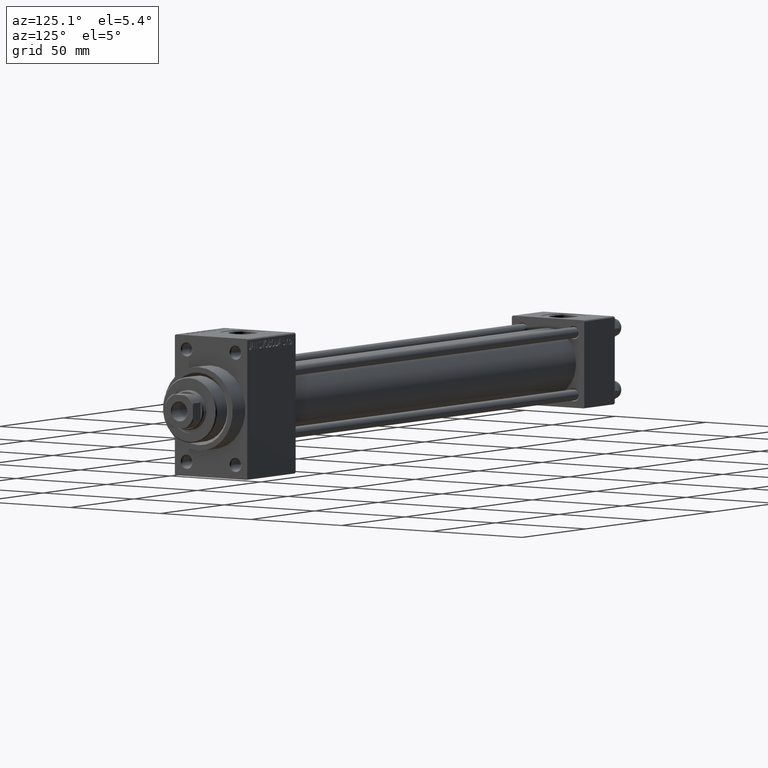
[diagram: clean part render]
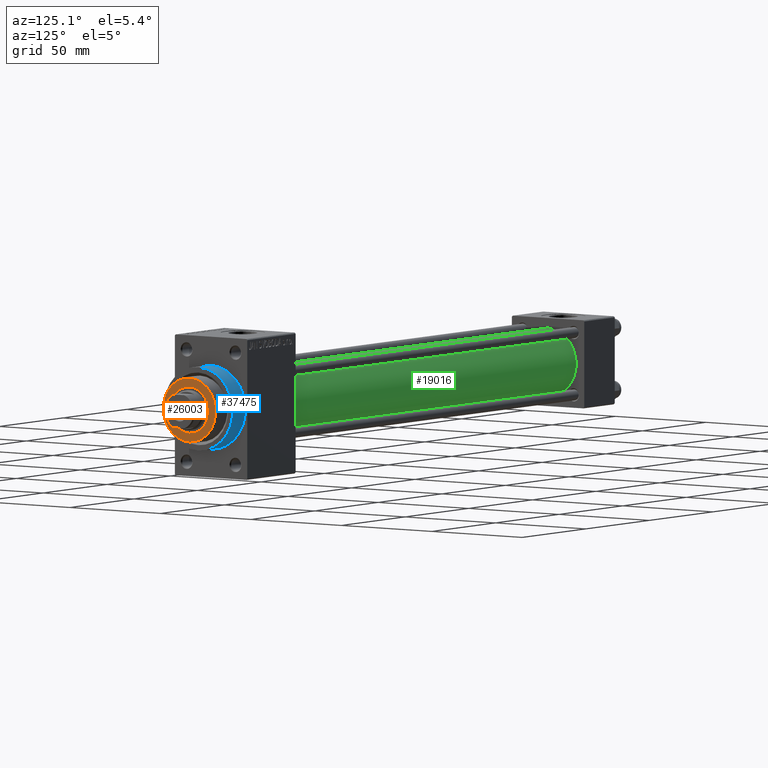
[diagram: same view with three faces highlighted in distinct colors, each labeled with its STEP entity id]
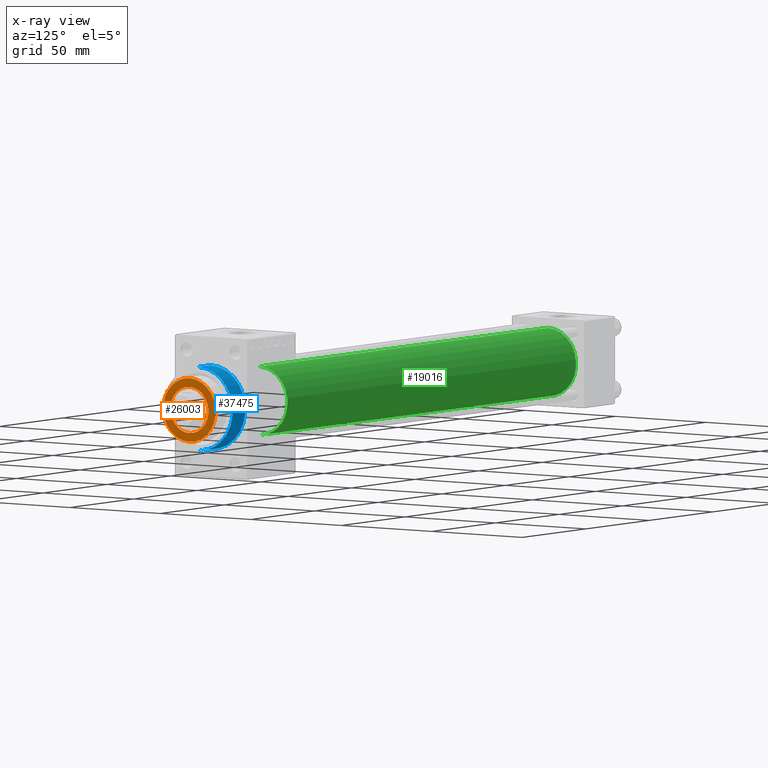
[diagram: x-ray of the same camera — body ghosted, the three highlighted faces saturated]
A machine part, auxiliary view with three faces highlighted in distinct colors.
The next image is the same camera in x-ray (body ghosted, the three faces saturated) — at least one of them is partly hidden behind the body in this view.
Their STEP definitions:

[orange] entity #26003 — the highlighted planar face has unit normal (1, -0, -0).
#2009 = EDGE_CURVE ( 'NONE', #25705, #29684, #4596, .T. ) ;
#2269 = AXIS2_PLACEMENT_3D ( 'NONE', #35678, #9964, #39954 ) ;
#3638 = CARTESIAN_POINT ( 'NONE',  ( 10.50000000000000000, 0.000000000000000000, 50.25999999999999801 ) ) ;
#4596 = CIRCLE ( 'NONE', #31203, 14.49999999999999112 ) ;
#4811 = ORIENTED_EDGE ( 'NONE', *, *, #12900, .T. ) ;
#5240 = FACE_OUTER_BOUND ( 'NONE', #44847, .T. ) ;
#5630 = CARTESIAN_POINT ( 'NONE',  ( 14.49999999999999112, 1.806354028742345013E-15, 50.25999999999999801 ) ) ;
#6304 = DIRECTION ( 'NONE',  ( 0.000000000000000000, 0.000000000000000000, 1.000000000000000000 ) ) ;
#9405 = CARTESIAN_POINT ( 'NONE',  ( 0.000000000000000000, 0.000000000000000000, 50.25999999999999801 ) ) ;
#9964 = DIRECTION ( 'NONE',  ( 0.000000000000000000, 0.000000000000000000, 1.000000000000000000 ) ) ;
#10255 = EDGE_LOOP ( 'NONE', ( #18934, #20164 ) ) ;
#12628 = VERTEX_POINT ( 'NONE', #3638 ) ;
#12900 = EDGE_CURVE ( 'NONE', #29684, #25705, #39047, .T. ) ;
#14142 = DIRECTION ( 'NONE',  ( 1.000000000000000000, 0.000000000000000000, 0.000000000000000000 ) ) ;
#14538 = DIRECTION ( 'NONE',  ( 0.000000000000000000, 0.000000000000000000, 1.000000000000000000 ) ) ;
#16187 = CARTESIAN_POINT ( 'NONE',  ( 0.000000000000000000, 0.000000000000000000, 50.25999999999999801 ) ) ;
#16743 = VERTEX_POINT ( 'NONE', #30263 ) ;
#18934 = ORIENTED_EDGE ( 'NONE', *, *, #33190, .F. ) ;
#19038 = CIRCLE ( 'NONE', #2269, 10.50000000000000000 ) ;
#19764 = PLANE ( 'NONE',  #28655 ) ;
#20164 = ORIENTED_EDGE ( 'NONE', *, *, #21427, .F. ) ;
#21004 = CARTESIAN_POINT ( 'NONE',  ( -14.49999999999999112, 0.000000000000000000, 50.25999999999999801 ) ) ;
#21427 = EDGE_CURVE ( 'NONE', #16743, #12628, #37655, .T. ) ;
#25705 = VERTEX_POINT ( 'NONE', #21004 ) ;
#26003 = ADVANCED_FACE ( 'NONE', ( #37852, #5240 ), #19764, .T. ) ;
#27370 = DIRECTION ( 'NONE',  ( 1.000000000000000000, 0.000000000000000000, -0.000000000000000000 ) ) ;
#27873 = AXIS2_PLACEMENT_3D ( 'NONE', #9405, #6304, #14142 ) ;
#28655 = AXIS2_PLACEMENT_3D ( 'NONE', #16187, #34760, #27370 ) ;
#28732 = DIRECTION ( 'NONE',  ( 0.000000000000000000, 0.000000000000000000, 1.000000000000000000 ) ) ;
#29684 = VERTEX_POINT ( 'NONE', #5630 ) ;
#29942 = DIRECTION ( 'NONE',  ( 1.000000000000000000, 0.000000000000000000, 0.000000000000000000 ) ) ;
#30263 = CARTESIAN_POINT ( 'NONE',  ( -10.50000000000000000, 1.285879139104720831E-15, 50.25999999999999801 ) ) ;
#31203 = AXIS2_PLACEMENT_3D ( 'NONE', #43501, #28732, #40392 ) ;
#33190 = EDGE_CURVE ( 'NONE', #12628, #16743, #19038, .T. ) ;
#34760 = DIRECTION ( 'NONE',  ( 0.000000000000000000, 0.000000000000000000, 1.000000000000000000 ) ) ;
#35678 = CARTESIAN_POINT ( 'NONE',  ( 0.000000000000000000, 0.000000000000000000, 50.25999999999999801 ) ) ;
#36360 = ORIENTED_EDGE ( 'NONE', *, *, #2009, .T. ) ;
#37655 = CIRCLE ( 'NONE', #27873, 10.50000000000000000 ) ;
#37852 = FACE_BOUND ( 'NONE', #10255, .T. ) ;
#39047 = CIRCLE ( 'NONE', #44375, 14.49999999999999112 ) ;
#39779 = CARTESIAN_POINT ( 'NONE',  ( 0.000000000000000000, 0.000000000000000000, 50.25999999999999801 ) ) ;
#39954 = DIRECTION ( 'NONE',  ( 1.000000000000000000, 0.000000000000000000, 0.000000000000000000 ) ) ;
#40392 = DIRECTION ( 'NONE',  ( 1.000000000000000000, 0.000000000000000000, 0.000000000000000000 ) ) ;
#43501 = CARTESIAN_POINT ( 'NONE',  ( 0.000000000000000000, 0.000000000000000000, 50.25999999999999801 ) ) ;
#44375 = AXIS2_PLACEMENT_3D ( 'NONE', #39779, #14538, #29942 ) ;
#44847 = EDGE_LOOP ( 'NONE', ( #36360, #4811 ) ) ;

[blue] entity #37475 — the highlighted cylindrical surface (partial cylindrical patch) has radius 19 mm, axis along (-1, -0, -0).
#310 = CARTESIAN_POINT ( 'NONE',  ( 299.0000000000000000, 0.000000000000000000, 0.000000000000000000 ) ) ;
#1340 = EDGE_LOOP ( 'NONE', ( #39508, #7568, #23236, #37101 ) ) ;
#3640 = DIRECTION ( 'NONE',  ( -1.000000000000000000, -0.000000000000000000, -0.000000000000000000 ) ) ;
#4935 = LINE ( 'NONE', #19451, #29611 ) ;
#6393 = DIRECTION ( 'NONE',  ( -1.000000000000000000, -0.000000000000000000, -0.000000000000000000 ) ) ;
#7568 = ORIENTED_EDGE ( 'NONE', *, *, #36903, .T. ) ;
#8207 = AXIS2_PLACEMENT_3D ( 'NONE', #23217, #12269, #45361 ) ;
#9119 = DIRECTION ( 'NONE',  ( 1.000000000000000000, 0.000000000000000000, 0.000000000000000000 ) ) ;
#10547 = FACE_OUTER_BOUND ( 'NONE', #1340, .T. ) ;
#10565 = CARTESIAN_POINT ( 'NONE',  ( 289.0000000000000000, 0.000000000000000000, 19.00000000000000000 ) ) ;
#12269 = DIRECTION ( 'NONE',  ( 1.000000000000000000, 0.000000000000000000, 0.000000000000000000 ) ) ;
#13822 = VERTEX_POINT ( 'NONE', #39724 ) ;
#14001 = LINE ( 'NONE', #31393, #18998 ) ;
#14596 = CYLINDRICAL_SURFACE ( 'NONE', #28919, 19.00000000000000000 ) ;
#15099 = CIRCLE ( 'NONE', #38637, 19.00000000000000000 ) ;
#18089 = CIRCLE ( 'NONE', #8207, 19.00000000000000000 ) ;
#18162 = DIRECTION ( 'NONE',  ( 0.000000000000000000, 0.000000000000000000, 1.000000000000000000 ) ) ;
#18998 = VECTOR ( 'NONE', #6393, 1000.000000000000000 ) ;
#19451 = CARTESIAN_POINT ( 'NONE',  ( 299.0000000000000000, 0.000000000000000000, 19.00000000000000000 ) ) ;
#23217 = CARTESIAN_POINT ( 'NONE',  ( 299.0000000000000000, 0.000000000000000000, 0.000000000000000000 ) ) ;
#23236 = ORIENTED_EDGE ( 'NONE', *, *, #28679, .T. ) ;
#26438 = VERTEX_POINT ( 'NONE', #39215 ) ;
#26975 = CARTESIAN_POINT ( 'NONE',  ( 289.0000000000000000, 0.000000000000000000, 0.000000000000000000 ) ) ;
#27527 = DIRECTION ( 'NONE',  ( -1.000000000000000000, -0.000000000000000000, -0.000000000000000000 ) ) ;
#27651 = EDGE_CURVE ( 'NONE', #38290, #13822, #18089, .T. ) ;
#28679 = EDGE_CURVE ( 'NONE', #26438, #31732, #15099, .T. ) ;
#28919 = AXIS2_PLACEMENT_3D ( 'NONE', #310, #3640, #18162 ) ;
#29611 = VECTOR ( 'NONE', #27527, 1000.000000000000000 ) ;
#31272 = EDGE_CURVE ( 'NONE', #13822, #31732, #4935, .T. ) ;
#31393 = CARTESIAN_POINT ( 'NONE',  ( 299.0000000000000000, 2.326828918379970970E-15, -19.00000000000000000 ) ) ;
#31732 = VERTEX_POINT ( 'NONE', #10565 ) ;
#36903 = EDGE_CURVE ( 'NONE', #38290, #26438, #14001, .T. ) ;
#37101 = ORIENTED_EDGE ( 'NONE', *, *, #31272, .F. ) ;
#37475 = ADVANCED_FACE ( 'NONE', ( #10547 ), #14596, .T. ) ;
#38158 = DIRECTION ( 'NONE',  ( 0.000000000000000000, 0.000000000000000000, -1.000000000000000000 ) ) ;
#38290 = VERTEX_POINT ( 'NONE', #38595 ) ;
#38595 = CARTESIAN_POINT ( 'NONE',  ( 299.0000000000000000, 2.326828918379970970E-15, -19.00000000000000000 ) ) ;
#38637 = AXIS2_PLACEMENT_3D ( 'NONE', #26975, #9119, #38158 ) ;
#39215 = CARTESIAN_POINT ( 'NONE',  ( 289.0000000000000000, 2.326828918379970970E-15, -19.00000000000000000 ) ) ;
#39508 = ORIENTED_EDGE ( 'NONE', *, *, #27651, .F. ) ;
#39724 = CARTESIAN_POINT ( 'NONE',  ( 299.0000000000000000, 0.000000000000000000, 19.00000000000000000 ) ) ;
#45361 = DIRECTION ( 'NONE',  ( 0.000000000000000000, 0.000000000000000000, -1.000000000000000000 ) ) ;

[green] entity #19016 — the highlighted cylindrical surface (edge-blend (fillet) strip) has radius 15.5 mm, axis along (-1, -0, -0).
#118 = AXIS2_PLACEMENT_3D ( 'NONE', #33114, #15243, #36911 ) ;
#4637 = AXIS2_PLACEMENT_3D ( 'NONE', #27987, #9899, #39180 ) ;
#6812 = VERTEX_POINT ( 'NONE', #28736 ) ;
#7008 = VECTOR ( 'NONE', #19080, 1000.000000000000000 ) ;
#7386 = ORIENTED_EDGE ( 'NONE', *, *, #46151, .F. ) ;
#7661 = EDGE_CURVE ( 'NONE', #19498, #25187, #20632, .T. ) ;
#9899 = DIRECTION ( 'NONE',  ( 1.000000000000000000, 0.000000000000000000, 0.000000000000000000 ) ) ;
#10697 = DIRECTION ( 'NONE',  ( -1.000000000000000000, -0.000000000000000000, -0.000000000000000000 ) ) ;
#12222 = CIRCLE ( 'NONE', #4637, 15.50000000000000000 ) ;
#13371 = AXIS2_PLACEMENT_3D ( 'NONE', #33691, #22503, #22024 ) ;
#15243 = DIRECTION ( 'NONE',  ( 1.000000000000000000, 0.000000000000000000, 0.000000000000000000 ) ) ;
#15355 = FACE_OUTER_BOUND ( 'NONE', #35142, .T. ) ;
#19016 = ADVANCED_FACE ( 'NONE', ( #15355 ), #26301, .T. ) ;
#19080 = DIRECTION ( 'NONE',  ( -1.000000000000000000, -0.000000000000000000, -0.000000000000000000 ) ) ;
#19498 = VERTEX_POINT ( 'NONE', #26709 ) ;
#20399 = ORIENTED_EDGE ( 'NONE', *, *, #7661, .T. ) ;
#20632 = CIRCLE ( 'NONE', #118, 15.50000000000000000 ) ;
#21171 = CARTESIAN_POINT ( 'NONE',  ( 23.99999999999999289, -2.602085213965210642E-15, 15.50000000000000000 ) ) ;
#22024 = DIRECTION ( 'NONE',  ( 0.000000000000000000, 0.000000000000000000, 1.000000000000000000 ) ) ;
#22503 = DIRECTION ( 'NONE',  ( -1.000000000000000000, -0.000000000000000000, -0.000000000000000000 ) ) ;
#25187 = VERTEX_POINT ( 'NONE', #21171 ) ;
#25216 = LINE ( 'NONE', #39980, #28721 ) ;
#26301 = CYLINDRICAL_SURFACE ( 'NONE', #13371, 15.50000000000000000 ) ;
#26453 = LINE ( 'NONE', #36936, #7008 ) ;
#26709 = CARTESIAN_POINT ( 'NONE',  ( 23.99999999999999289, -7.038826752868134786E-16, -15.50000000000000000 ) ) ;
#27961 = EDGE_CURVE ( 'NONE', #6812, #19498, #25216, .T. ) ;
#27987 = CARTESIAN_POINT ( 'NONE',  ( 251.0000000000000000, -2.602085213965210642E-15, 0.000000000000000000 ) ) ;
#28721 = VECTOR ( 'NONE', #10697, 1000.000000000000000 ) ;
#28736 = CARTESIAN_POINT ( 'NONE',  ( 251.0000000000000000, -7.038826752868134786E-16, -15.50000000000000000 ) ) ;
#29134 = CARTESIAN_POINT ( 'NONE',  ( 251.0000000000000000, -2.602085213965210642E-15, 15.50000000000000000 ) ) ;
#31736 = VERTEX_POINT ( 'NONE', #29134 ) ;
#33114 = CARTESIAN_POINT ( 'NONE',  ( 23.99999999999999289, -2.602085213965210642E-15, 0.000000000000000000 ) ) ;
#33691 = CARTESIAN_POINT ( 'NONE',  ( 251.0000000000000000, -2.602085213965210642E-15, 0.000000000000000000 ) ) ;
#35079 = ORIENTED_EDGE ( 'NONE', *, *, #27961, .T. ) ;
#35142 = EDGE_LOOP ( 'NONE', ( #7386, #35079, #20399, #46448 ) ) ;
#36911 = DIRECTION ( 'NONE',  ( 0.000000000000000000, 0.000000000000000000, 1.000000000000000000 ) ) ;
#36936 = CARTESIAN_POINT ( 'NONE',  ( 251.0000000000000000, -2.602085213965210642E-15, 15.50000000000000000 ) ) ;
#39180 = DIRECTION ( 'NONE',  ( 0.000000000000000000, 0.000000000000000000, -1.000000000000000000 ) ) ;
#39980 = CARTESIAN_POINT ( 'NONE',  ( 251.0000000000000000, -7.038826752868134786E-16, -15.50000000000000000 ) ) ;
#40465 = EDGE_CURVE ( 'NONE', #31736, #25187, #26453, .T. ) ;
#46151 = EDGE_CURVE ( 'NONE', #6812, #31736, #12222, .T. ) ;
#46448 = ORIENTED_EDGE ( 'NONE', *, *, #40465, .F. ) ;